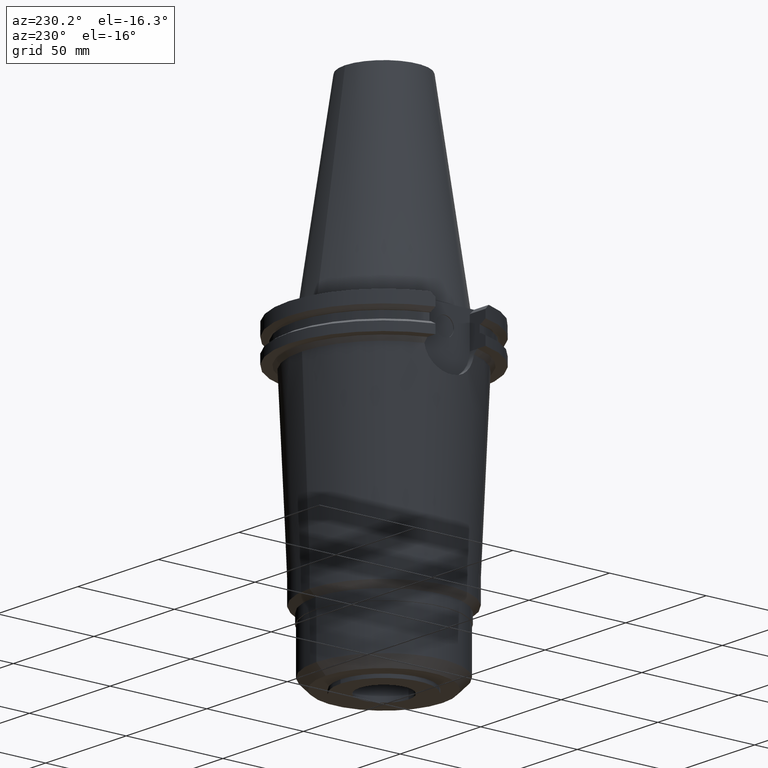
[diagram: clean part render]
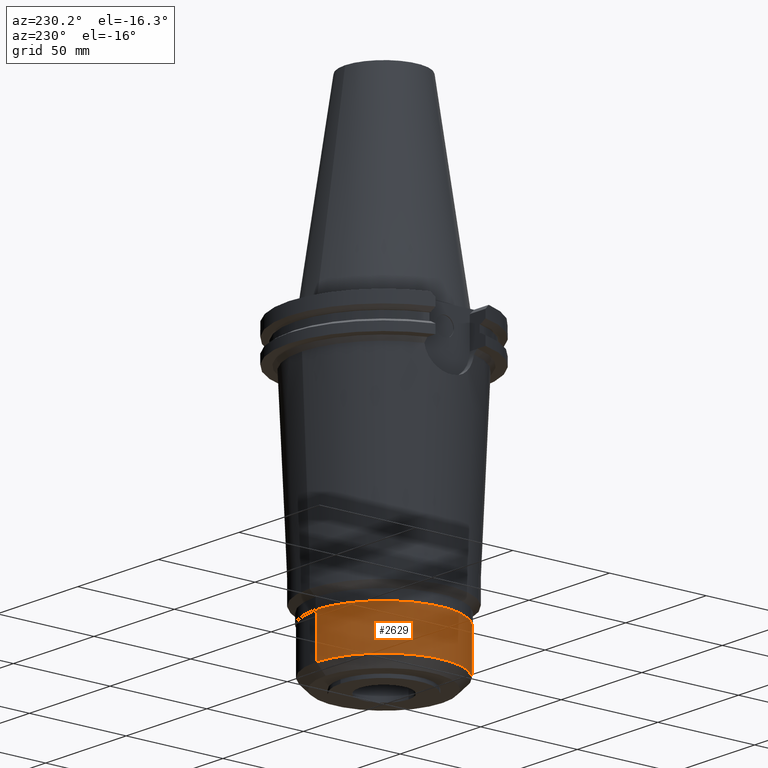
[diagram: same view with one face highlighted and labeled with its STEP entity id]
A machine part, auxiliary view. The second image highlights one B-rep face of the part: STEP entity #2629.
In plain terms, the highlighted cylindrical surface (partial cylindrical patch) has radius 35 mm, axis along (0, 0, -1).
Its self-contained STEP definition (entity closure, byte-faithful):
#1174=CARTESIAN_POINT('',(0.E0,2.625887666732E-14,-1.265E2));
#1175=DIRECTION('',(0.E0,0.E0,-1.E0));
#1176=DIRECTION('',(0.E0,-1.E0,0.E0));
#1177=AXIS2_PLACEMENT_3D('',#1174,#1175,#1176);
#1190=DIRECTION('',(0.E0,0.E0,-1.E0));
#1191=VECTOR('',#1190,2.17E1);
#1192=CARTESIAN_POINT('',(0.E0,-3.5E1,-1.265E2));
#1193=LINE('',#1192,#1191);
#1197=DIRECTION('',(0.E0,0.E0,-1.E0));
#1198=VECTOR('',#1197,2.17E1);
#1199=CARTESIAN_POINT('',(0.E0,3.5E1,-1.265E2));
#1200=LINE('',#1199,#1198);
#1219=CARTESIAN_POINT('',(0.E0,0.E0,-1.482E2));
#1220=DIRECTION('',(0.E0,0.E0,1.E0));
#1221=DIRECTION('',(0.E0,1.E0,0.E0));
#1222=AXIS2_PLACEMENT_3D('',#1219,#1220,#1221);
#1600=CARTESIAN_POINT('',(0.E0,3.5E1,-1.482E2));
#1601=VERTEX_POINT('',#1600);
#1602=CARTESIAN_POINT('',(0.E0,-3.5E1,-1.482E2));
#1603=VERTEX_POINT('',#1602);
#1604=CARTESIAN_POINT('',(0.E0,3.5E1,-1.265E2));
#1605=VERTEX_POINT('',#1604);
#1606=CARTESIAN_POINT('',(0.E0,-3.5E1,-1.265E2));
#1607=VERTEX_POINT('',#1606);
#2615=CARTESIAN_POINT('',(0.E0,2.625887666732E-14,1.1442E2));
#2616=DIRECTION('',(0.E0,0.E0,-1.E0));
#2617=DIRECTION('',(0.E0,-1.E0,0.E0));
#2618=AXIS2_PLACEMENT_3D('',#2615,#2616,#2617);
#2619=CYLINDRICAL_SURFACE('',#2618,3.5E1);
#2621=ORIENTED_EDGE('',*,*,#2620,.F.);
#2622=ORIENTED_EDGE('',*,*,#2608,.F.);
#2624=ORIENTED_EDGE('',*,*,#2623,.T.);
#2626=ORIENTED_EDGE('',*,*,#2625,.F.);
#2627=EDGE_LOOP('',(#2621,#2622,#2624,#2626));
#2628=FACE_OUTER_BOUND('',#2627,.F.);
#1178=CIRCLE('',#1177,3.5E1);
#1223=CIRCLE('',#1222,3.5E1);
#2608=EDGE_CURVE('',#1607,#1605,#1178,.T.);
#2620=EDGE_CURVE('',#1605,#1601,#1200,.T.);
#2623=EDGE_CURVE('',#1607,#1603,#1193,.T.);
#2625=EDGE_CURVE('',#1601,#1603,#1223,.T.);
#2629=ADVANCED_FACE('',(#2628),#2619,.T.);